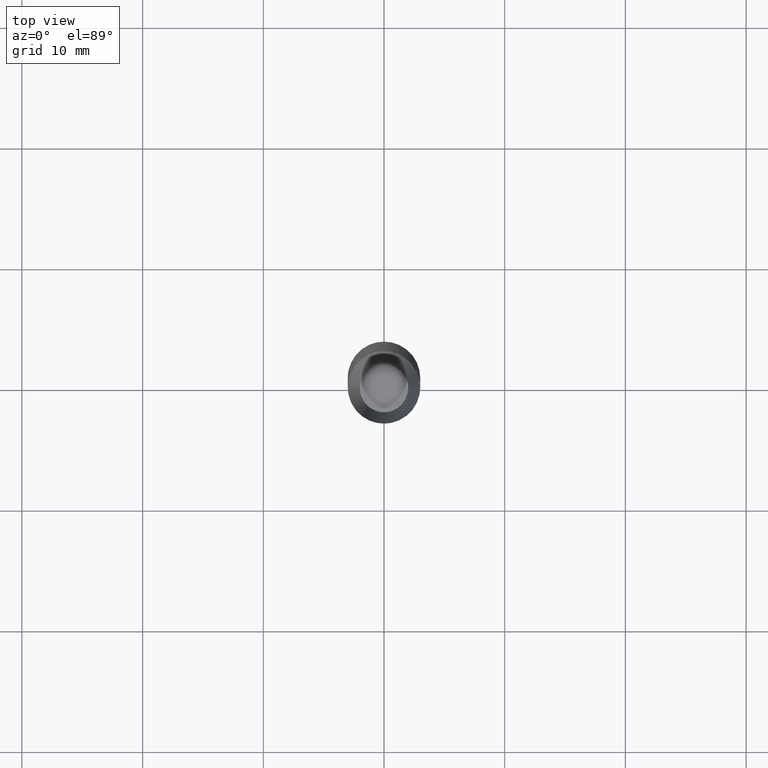
[diagram: clean part render]
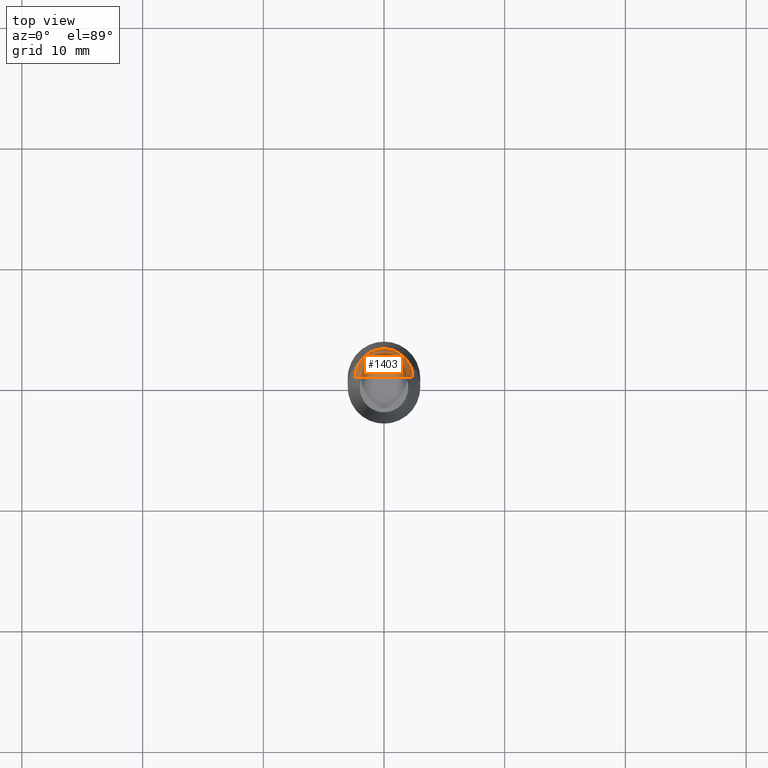
[diagram: same view with one face highlighted and labeled with its STEP entity id]
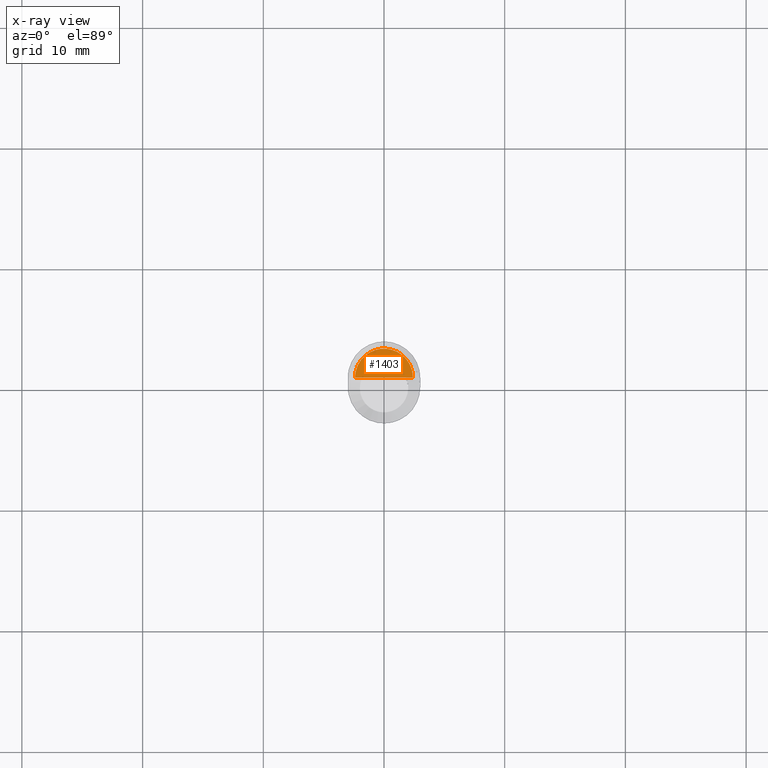
[diagram: x-ray of the same camera — body ghosted, the highlighted face saturated]
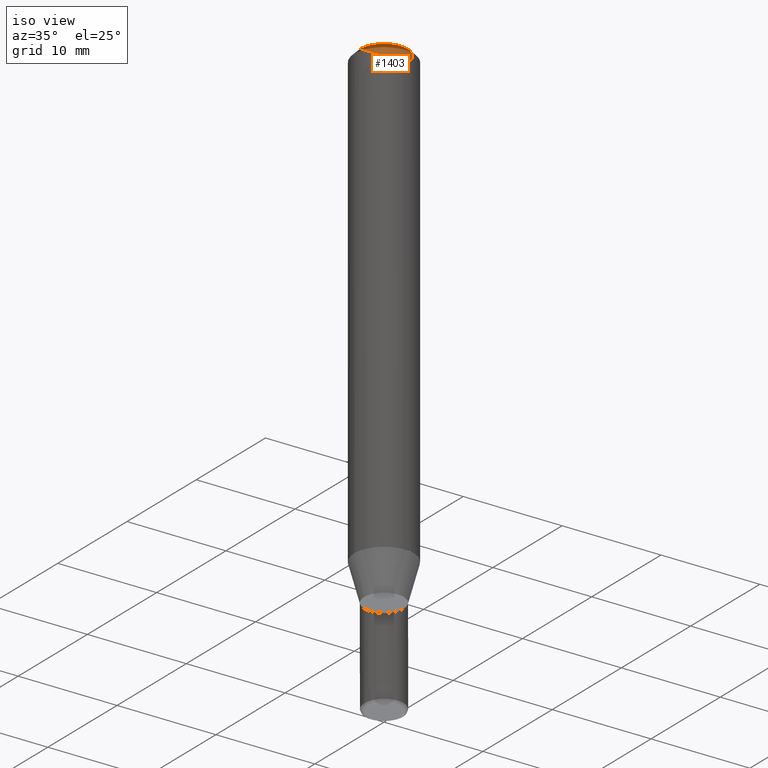
[diagram: same view with one face highlighted and labeled with its STEP entity id]
A machine part, top view. The second image highlights one B-rep face of the part: STEP entity #1403.
The next image is the same camera in x-ray: the body ghosted, the highlighted face saturated — about 0% of this face is hidden behind the body in this view.
A second angle (iso view) of the same face is appended — the face is thin or edge-on in the first view.
In plain terms, the highlighted face is a freeform B-spline surface patch.
Its self-contained STEP definition (entity closure, byte-faithful):
#1140=CARTESIAN_POINT('',(2.4,0.0,46.267949192431));
#1141=CARTESIAN_POINT('',(2.4,2.4,46.267949192431));
#1142=CARTESIAN_POINT('',(0.0,2.4,46.267949192431));
#1143=CARTESIAN_POINT('',(-2.4,2.4,46.267949192431));
#1144=CARTESIAN_POINT('',(-2.4,0.0,46.267949192431));
#1145=CARTESIAN_POINT('',(0.0,0.0,46.267949192431));
#1388=(
BOUNDED_SURFACE()
B_SPLINE_SURFACE(1,2,(
(#1140,#1141,#1142,#1143,#1144),
(#1145,#1145,#1145,#1145,#1145)
), .UNSPECIFIED.,.F.,.F.,.F.)
B_SPLINE_SURFACE_WITH_KNOTS((2,2),(3,2,3),(
0.0,1.0),(
0.0,0.5,1.0), .UNSPECIFIED.)
GEOMETRIC_REPRESENTATION_ITEM()
RATIONAL_B_SPLINE_SURFACE(((1.0,0.707106781187,1.0,0.707106781187,1.0),
(1.0,0.707106781187,1.0,0.707106781187,1.0)
))
REPRESENTATION_ITEM('')
SURFACE()
);
#1389=(
BOUNDED_CURVE()
B_SPLINE_CURVE(1,(#1145,#1140),.UNSPECIFIED.,.F.,.F.)
B_SPLINE_CURVE_WITH_KNOTS((2,2),
(0.0,1.0),.UNSPECIFIED.)
CURVE()
GEOMETRIC_REPRESENTATION_ITEM()
RATIONAL_B_SPLINE_CURVE((1.0,1.0))
REPRESENTATION_ITEM('')
);
#1390=(
BOUNDED_CURVE()
B_SPLINE_CURVE(2,(#1140,#1141,#1142,#1143,#1144),.UNSPECIFIED.,.F.,.F.)
B_SPLINE_CURVE_WITH_KNOTS((3,2,3),
(0.0,0.5,1.0),.UNSPECIFIED.)
CURVE()
GEOMETRIC_REPRESENTATION_ITEM()
RATIONAL_B_SPLINE_CURVE((1.0,0.707106781187,1.0,0.707106781187,1.0))
REPRESENTATION_ITEM('')
);
#1391=(
BOUNDED_CURVE()
B_SPLINE_CURVE(1,(#1144,#1145),.UNSPECIFIED.,.F.,.F.)
B_SPLINE_CURVE_WITH_KNOTS((2,2),
(0.0,1.0),.UNSPECIFIED.)
CURVE()
GEOMETRIC_REPRESENTATION_ITEM()
RATIONAL_B_SPLINE_CURVE((1.0,1.0))
REPRESENTATION_ITEM('')
);
#1392=VERTEX_POINT('',#1140);
#1393=VERTEX_POINT('',#1144);
#1394=VERTEX_POINT('',#1145);
#1395=EDGE_CURVE('',#1394,#1392,#1389,.T.);
#1396=EDGE_CURVE('',#1392,#1393,#1390,.T.);
#1397=EDGE_CURVE('',#1393,#1394,#1391,.T.);
#1398=ORIENTED_EDGE('',*,*,#1395,.T.);
#1399=ORIENTED_EDGE('',*,*,#1396,.T.);
#1400=ORIENTED_EDGE('',*,*,#1397,.T.);
#1401=EDGE_LOOP('',(#1398,#1399,#1400));
#1402=FACE_OUTER_BOUND('',#1401,.T.);
#1403=ADVANCED_FACE('',(#1402),#1388,.T.);